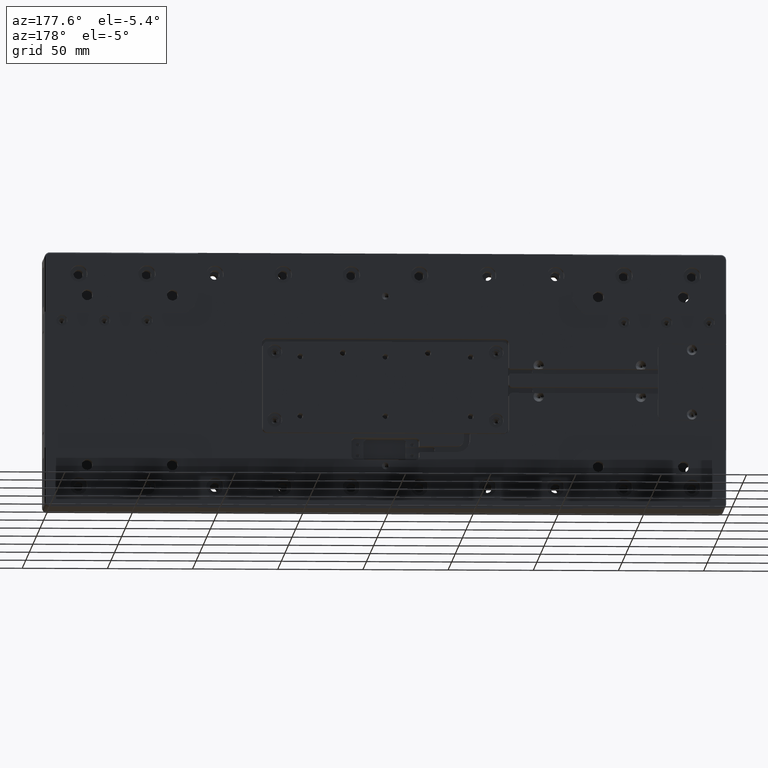
[diagram: clean part render]
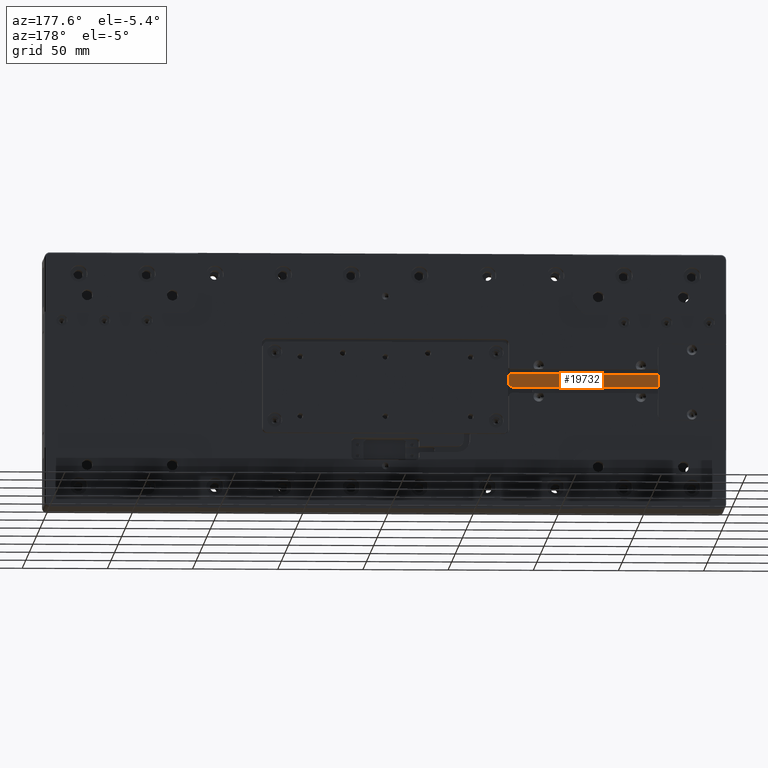
[diagram: same view with one face highlighted and labeled with its STEP entity id]
A machine part, auxiliary view. The second image highlights one B-rep face of the part: STEP entity #19732.
In plain terms, the highlighted planar face has unit normal (0, 1, 0).
Its self-contained STEP definition (entity closure, byte-faithful):
#75 = VERTEX_POINT ( 'NONE', #30723 ) ;
#444 = EDGE_CURVE ( 'NONE', #75, #35318, #14137, .T. ) ;
#913 = CIRCLE ( 'NONE', #14499, 2.000000000000000000 ) ;
#3062 = CARTESIAN_POINT ( 'NONE',  ( -160.0000000000000000, 14.50000000000000000, 4.500000000000000888 ) ) ;
#3372 = CARTESIAN_POINT ( 'NONE',  ( 0.000000000000000000, 14.50000000000000000, 0.000000000000000000 ) ) ;
#3907 = ORIENTED_EDGE ( 'NONE', *, *, #21964, .T. ) ;
#4231 = ORIENTED_EDGE ( 'NONE', *, *, #444, .T. ) ;
#5477 = ORIENTED_EDGE ( 'NONE', *, *, #8311, .T. ) ;
#5603 = VECTOR ( 'NONE', #23937, 1000.000000000000000 ) ;
#6493 = VECTOR ( 'NONE', #8303, 1000.000000000000000 ) ;
#7414 = ORIENTED_EDGE ( 'NONE', *, *, #16715, .T. ) ;
#8303 = DIRECTION ( 'NONE',  ( -1.000000000000000000, -0.000000000000000000, 0.000000000000000000 ) ) ;
#8311 = EDGE_CURVE ( 'NONE', #33388, #28364, #39970, .T. ) ;
#9295 = CARTESIAN_POINT ( 'NONE',  ( -200.0000000000000000, 14.50000000000000000, 4.500000000000000888 ) ) ;
#10221 = DIRECTION ( 'NONE',  ( 1.000000000000000000, -0.000000000000000000, 0.000000000000000000 ) ) ;
#10636 = EDGE_LOOP ( 'NONE', ( #4231, #15349, #3907, #7414, #5477, #32437 ) ) ;
#10935 = AXIS2_PLACEMENT_3D ( 'NONE', #3372, #15290, #36501 ) ;
#10967 = AXIS2_PLACEMENT_3D ( 'NONE', #21128, #39111, #11449 ) ;
#11449 = DIRECTION ( 'NONE',  ( 4.163336342344335133E-14, 0.000000000000000000, 1.000000000000000000 ) ) ;
#14137 = LINE ( 'NONE', #38757, #35805 ) ;
#14499 = AXIS2_PLACEMENT_3D ( 'NONE', #27437, #20766, #30070 ) ;
#15290 = DIRECTION ( 'NONE',  ( 0.000000000000000000, 1.000000000000000000, 0.000000000000000000 ) ) ;
#15349 = ORIENTED_EDGE ( 'NONE', *, *, #38528, .T. ) ;
#16715 = EDGE_CURVE ( 'NONE', #37718, #33388, #26783, .T. ) ;
#16999 = LINE ( 'NONE', #26096, #6493 ) ;
#19732 = ADVANCED_FACE ( 'NONE', ( #31051 ), #37280, .T. ) ;
#20766 = DIRECTION ( 'NONE',  ( -0.000000000000000000, 1.000000000000000000, -0.000000000000000000 ) ) ;
#20968 = VERTEX_POINT ( 'NONE', #21741 ) ;
#21128 = CARTESIAN_POINT ( 'NONE',  ( -73.50000000000000000, 14.49999999999999822, 3.500000000000000000 ) ) ;
#21741 = CARTESIAN_POINT ( 'NONE',  ( -74.50000000000000000, 14.49999999999999822, -3.250000000000000444 ) ) ;
#21964 = EDGE_CURVE ( 'NONE', #20968, #37718, #16999, .T. ) ;
#22641 = CARTESIAN_POINT ( 'NONE',  ( -72.50000000000000000, 14.49999999999999822, -1.250000000000000222 ) ) ;
#23424 = DIRECTION ( 'NONE',  ( -0.000000000000000000, 0.000000000000000000, -1.000000000000000000 ) ) ;
#23937 = DIRECTION ( 'NONE',  ( 0.000000000000000000, -0.000000000000000000, 1.000000000000000000 ) ) ;
#24313 = EDGE_CURVE ( 'NONE', #75, #28364, #28387, .T. ) ;
#26096 = CARTESIAN_POINT ( 'NONE',  ( -54.00000000000000000, 14.50000000000000000, -3.250000000000000444 ) ) ;
#26783 = LINE ( 'NONE', #39487, #5603 ) ;
#27437 = CARTESIAN_POINT ( 'NONE',  ( -74.50000000000000000, 14.49999999999999822, -1.250000000000000000 ) ) ;
#28364 = VERTEX_POINT ( 'NONE', #34833 ) ;
#28387 = CIRCLE ( 'NONE', #10967, 1.000000000000000444 ) ;
#30070 = DIRECTION ( 'NONE',  ( 0.000000000000000000, 0.000000000000000000, -1.000000000000000000 ) ) ;
#30723 = CARTESIAN_POINT ( 'NONE',  ( -72.50000000000000000, 14.49999999999999822, 3.500000000000000000 ) ) ;
#31051 = FACE_OUTER_BOUND ( 'NONE', #10636, .T. ) ;
#31832 = VECTOR ( 'NONE', #10221, 1000.000000000000000 ) ;
#32437 = ORIENTED_EDGE ( 'NONE', *, *, #24313, .F. ) ;
#33388 = VERTEX_POINT ( 'NONE', #3062 ) ;
#34833 = CARTESIAN_POINT ( 'NONE',  ( -73.50000000000001421, 14.49999999999999822, 4.500000000000000888 ) ) ;
#35318 = VERTEX_POINT ( 'NONE', #22641 ) ;
#35805 = VECTOR ( 'NONE', #23424, 1000.000000000000000 ) ;
#36501 = DIRECTION ( 'NONE',  ( 0.000000000000000000, -0.000000000000000000, 1.000000000000000000 ) ) ;
#37280 = PLANE ( 'NONE',  #10935 ) ;
#37718 = VERTEX_POINT ( 'NONE', #39646 ) ;
#38528 = EDGE_CURVE ( 'NONE', #35318, #20968, #913, .T. ) ;
#38757 = CARTESIAN_POINT ( 'NONE',  ( -72.50000000000000000, 14.50000000000000000, 0.000000000000000000 ) ) ;
#39111 = DIRECTION ( 'NONE',  ( -0.000000000000000000, -1.000000000000000000, -0.000000000000000000 ) ) ;
#39487 = CARTESIAN_POINT ( 'NONE',  ( -160.0000000000000000, 14.50000000000000000, 0.000000000000000000 ) ) ;
#39646 = CARTESIAN_POINT ( 'NONE',  ( -160.0000000000000000, 14.50000000000000000, -3.250000000000000888 ) ) ;
#39970 = LINE ( 'NONE', #9295, #31832 ) ;